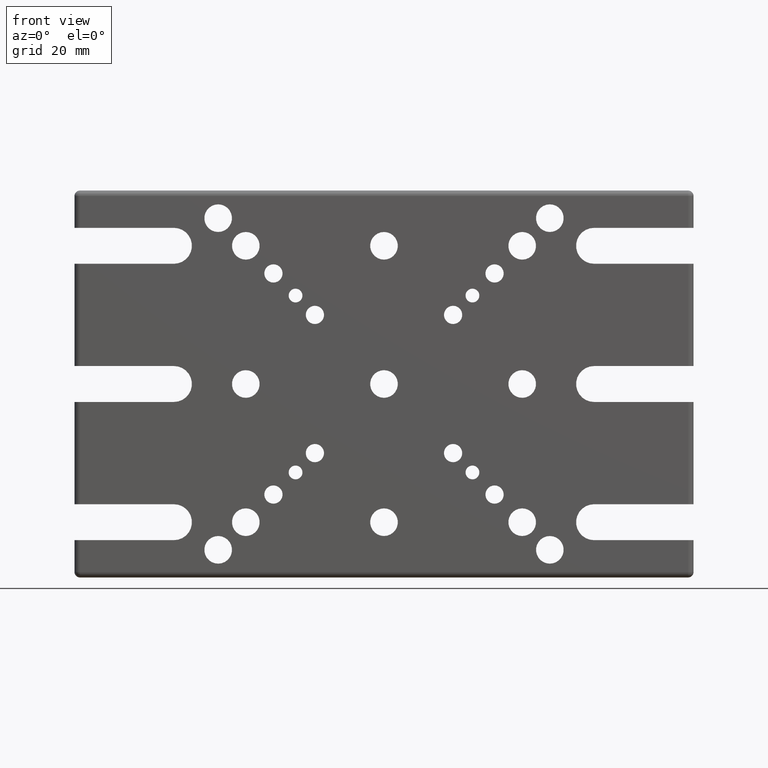
[diagram: clean part render]
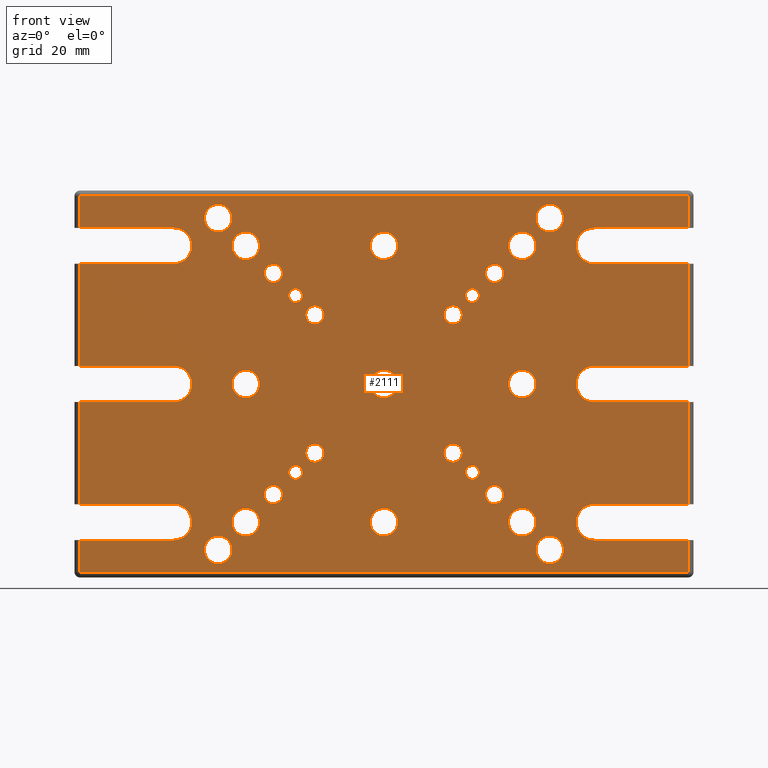
[diagram: same view with one face highlighted and labeled with its STEP entity id]
A machine part, front view. The second image highlights one B-rep face of the part: STEP entity #2111.
In plain terms, the highlighted planar face has unit normal (0, 1, 0).
Its self-contained STEP definition (entity closure, byte-faithful):
#3 = DIRECTION ( 'NONE',  ( -0.000000000000000000, 0.000000000000000000, -1.000000000000000000 ) ) ;
#7 = CARTESIAN_POINT ( 'NONE',  ( 38.00000000000000000, 0.000000000000000000, 3.250000000000005329 ) ) ;
#14 = EDGE_CURVE ( 'NONE', #2745, #2745, #1881, .T. ) ;
#18 = ORIENTED_EDGE ( 'NONE', *, *, #752, .T. ) ;
#34 = DIRECTION ( 'NONE',  ( 0.000000000000000000, 0.000000000000000000, 1.000000000000000000 ) ) ;
#42 = DIRECTION ( 'NONE',  ( -0.000000000000000000, 1.000000000000000000, -0.000000000000000000 ) ) ;
#46 = LINE ( 'NONE', #2272, #368 ) ;
#71 = CARTESIAN_POINT ( 'NONE',  ( -38.00000000000000000, 0.000000000000000000, -28.24999999999999645 ) ) ;
#93 = AXIS2_PLACEMENT_3D ( 'NONE', #787, #194, #1099 ) ;
#94 = VERTEX_POINT ( 'NONE', #983 ) ;
#96 = CIRCLE ( 'NONE', #685, 1.649999999999998579 ) ;
#98 = ORIENTED_EDGE ( 'NONE', *, *, #1024, .T. ) ;
#115 = EDGE_CURVE ( 'NONE', #2662, #2662, #2332, .T. ) ;
#116 = AXIS2_PLACEMENT_3D ( 'NONE', #608, #860, #3994 ) ;
#118 = CARTESIAN_POINT ( 'NONE',  ( 38.00000000000000000, 0.000000000000000000, -21.75000000000000000 ) ) ;
#161 = VERTEX_POINT ( 'NONE', #3013 ) ;
#162 = VERTEX_POINT ( 'NONE', #3385 ) ;
#170 = CIRCLE ( 'NONE', #3324, 2.499999999999998668 ) ;
#180 = CARTESIAN_POINT ( 'NONE',  ( 0.000000000000000000, 0.000000000000000000, 0.000000000000000000 ) ) ;
#183 = CIRCLE ( 'NONE', #769, 1.649999999999998579 ) ;
#189 = CARTESIAN_POINT ( 'NONE',  ( -55.00000000000000000, 0.000000000000000000, 33.99999999999999289 ) ) ;
#194 = DIRECTION ( 'NONE',  ( -0.000000000000000000, 1.000000000000000000, -0.000000000000000000 ) ) ;
#218 = EDGE_CURVE ( 'NONE', #161, #161, #1049, .T. ) ;
#219 = EDGE_CURVE ( 'NONE', #3874, #2445, #1520, .T. ) ;
#238 = CARTESIAN_POINT ( 'NONE',  ( 0.000000000000000000, 0.000000000000000000, 21.75000000000001066 ) ) ;
#241 = CARTESIAN_POINT ( 'NONE',  ( -25.00000000000001776, 0.000000000000000000, -22.50000000000001421 ) ) ;
#264 = VECTOR ( 'NONE', #2732, 1000.000000000000000 ) ;
#265 = VERTEX_POINT ( 'NONE', #2767 ) ;
#272 = VECTOR ( 'NONE', #664, 1000.000000000000000 ) ;
#299 = ORIENTED_EDGE ( 'NONE', *, *, #1116, .F. ) ;
#305 = CARTESIAN_POINT ( 'NONE',  ( -1.734723475976807094E-14, 0.000000000000000000, 27.49999999999998934 ) ) ;
#311 = ORIENTED_EDGE ( 'NONE', *, *, #1130, .F. ) ;
#313 = AXIS2_PLACEMENT_3D ( 'NONE', #1277, #320, #2547 ) ;
#320 = DIRECTION ( 'NONE',  ( 0.000000000000000000, 1.000000000000000000, 0.000000000000000000 ) ) ;
#324 = ORIENTED_EDGE ( 'NONE', *, *, #2291, .F. ) ;
#325 = CARTESIAN_POINT ( 'NONE',  ( 29.99999999999999645, 0.000000000000000000, 29.99999999999999645 ) ) ;
#337 = FACE_BOUND ( 'NONE', #2126, .T. ) ;
#339 = VERTEX_POINT ( 'NONE', #1936 ) ;
#356 = CARTESIAN_POINT ( 'NONE',  ( 24.99999999999998579, 0.000000000000000000, 2.499999999999988454 ) ) ;
#368 = VECTOR ( 'NONE', #1312, 1000.000000000000000 ) ;
#371 = CARTESIAN_POINT ( 'NONE',  ( 24.99999999999998579, 0.000000000000000000, 24.99999999999998934 ) ) ;
#375 = CARTESIAN_POINT ( 'NONE',  ( -12.49999999999999467, 0.000000000000000000, 14.15000000000000036 ) ) ;
#377 = CIRCLE ( 'NONE', #2702, 2.499999999999998668 ) ;
#394 = CARTESIAN_POINT ( 'NONE',  ( -16.00000000000000000, 0.000000000000000000, -16.00000000000000000 ) ) ;
#399 = DIRECTION ( 'NONE',  ( 0.000000000000000000, 0.000000000000000000, 1.000000000000000000 ) ) ;
#400 = EDGE_CURVE ( 'NONE', #1424, #1424, #170, .T. ) ;
#402 = CARTESIAN_POINT ( 'NONE',  ( 0.000000000000000000, 0.000000000000000000, 28.25000000000000711 ) ) ;
#415 = DIRECTION ( 'NONE',  ( -0.000000000000000000, 1.000000000000000000, -0.000000000000000000 ) ) ;
#416 = EDGE_CURVE ( 'NONE', #1445, #1445, #96, .T. ) ;
#465 = EDGE_CURVE ( 'NONE', #1465, #1465, #1087, .T. ) ;
#484 = CARTESIAN_POINT ( 'NONE',  ( 19.99999999999999289, 0.000000000000000000, -18.35000000000000142 ) ) ;
#544 = CARTESIAN_POINT ( 'NONE',  ( -15.99999999999999289, 0.000000000000000000, 16.00000000000000000 ) ) ;
#553 = EDGE_LOOP ( 'NONE', ( #1055 ) ) ;
#560 = CIRCLE ( 'NONE', #1291, 1.250000000000001110 ) ;
#578 = CIRCLE ( 'NONE', #1306, 2.499999999999998668 ) ;
#589 = CARTESIAN_POINT ( 'NONE',  ( -1.734723475976807094E-14, 0.000000000000000000, -22.50000000000001421 ) ) ;
#591 = VECTOR ( 'NONE', #3250, 1000.000000000000000 ) ;
#594 = EDGE_LOOP ( 'NONE', ( #3160 ) ) ;
#608 = CARTESIAN_POINT ( 'NONE',  ( 37.99999999999999289, 0.000000000000000000, 25.00000000000000711 ) ) ;
#619 = CARTESIAN_POINT ( 'NONE',  ( 38.00000000000000000, 0.000000000000000000, -24.99999999999999645 ) ) ;
#624 = FACE_BOUND ( 'NONE', #3982, .T. ) ;
#637 = DIRECTION ( 'NONE',  ( -0.000000000000000000, 1.000000000000000000, -0.000000000000000000 ) ) ;
#642 = LINE ( 'NONE', #1292, #1355 ) ;
#644 = FACE_BOUND ( 'NONE', #2419, .T. ) ;
#658 = AXIS2_PLACEMENT_3D ( 'NONE', #1069, #3581, #3011 ) ;
#662 = DIRECTION ( 'NONE',  ( 0.000000000000000000, 0.000000000000000000, 1.000000000000000000 ) ) ;
#663 = CARTESIAN_POINT ( 'NONE',  ( 0.000000000000000000, 0.000000000000000000, 21.75000000000001066 ) ) ;
#664 = DIRECTION ( 'NONE',  ( 1.000000000000000000, -0.000000000000000000, -0.000000000000000000 ) ) ;
#683 = FACE_BOUND ( 'NONE', #737, .T. ) ;
#685 = AXIS2_PLACEMENT_3D ( 'NONE', #2269, #42, #1309 ) ;
#688 = EDGE_CURVE ( 'NONE', #2528, #2528, #560, .T. ) ;
#695 = ORIENTED_EDGE ( 'NONE', *, *, #2134, .T. ) ;
#726 = EDGE_CURVE ( 'NONE', #2888, #3941, #642, .T. ) ;
#737 = EDGE_LOOP ( 'NONE', ( #2263 ) ) ;
#746 = CARTESIAN_POINT ( 'NONE',  ( -55.00000000000000000, 0.000000000000000000, -34.00000000000000711 ) ) ;
#752 = EDGE_CURVE ( 'NONE', #1549, #1549, #3591, .T. ) ;
#755 = AXIS2_PLACEMENT_3D ( 'NONE', #371, #1891, #1912 ) ;
#765 = DIRECTION ( 'NONE',  ( 0.000000000000000000, 0.000000000000000000, 1.000000000000000000 ) ) ;
#766 = CARTESIAN_POINT ( 'NONE',  ( -37.99999999999999289, 0.000000000000000000, 25.00000000000000711 ) ) ;
#769 = AXIS2_PLACEMENT_3D ( 'NONE', #1688, #415, #1707 ) ;
#774 = CIRCLE ( 'NONE', #3613, 1.249999999999997558 ) ;
#776 = DIRECTION ( 'NONE',  ( -1.000000000000000000, 0.000000000000000000, 0.000000000000000000 ) ) ;
#778 = EDGE_CURVE ( 'NONE', #3940, #1839, #3494, .T. ) ;
#782 = VECTOR ( 'NONE', #3242, 1000.000000000000000 ) ;
#783 = LINE ( 'NONE', #1764, #264 ) ;
#787 = CARTESIAN_POINT ( 'NONE',  ( 16.00000000000000711, 0.000000000000000000, 16.00000000000000000 ) ) ;
#815 = CARTESIAN_POINT ( 'NONE',  ( 55.00000000000000000, 0.000000000000000000, 21.75000000000001066 ) ) ;
#820 = CARTESIAN_POINT ( 'NONE',  ( -38.00000000000000000, 0.000000000000000000, -21.75000000000000000 ) ) ;
#836 = CARTESIAN_POINT ( 'NONE',  ( -37.99999999999999289, 0.000000000000000000, 28.25000000000000711 ) ) ;
#840 = AXIS2_PLACEMENT_3D ( 'NONE', #3647, #3565, #1072 ) ;
#860 = DIRECTION ( 'NONE',  ( -0.000000000000000000, -1.000000000000000000, -0.000000000000000000 ) ) ;
#864 = DIRECTION ( 'NONE',  ( -0.000000000000000000, 1.000000000000000000, -0.000000000000000000 ) ) ;
#881 = CARTESIAN_POINT ( 'NONE',  ( 24.99999999999998579, 0.000000000000000000, 27.49999999999998934 ) ) ;
#885 = ORIENTED_EDGE ( 'NONE', *, *, #1684, .T. ) ;
#894 = EDGE_CURVE ( 'NONE', #2513, #2513, #3476, .T. ) ;
#895 = ORIENTED_EDGE ( 'NONE', *, *, #3857, .T. ) ;
#898 = LINE ( 'NONE', #1856, #2955 ) ;
#921 = CARTESIAN_POINT ( 'NONE',  ( 38.00000000000000000, 0.000000000000000000, -28.24999999999999645 ) ) ;
#922 = VECTOR ( 'NONE', #2199, 1000.000000000000000 ) ;
#926 = CARTESIAN_POINT ( 'NONE',  ( 0.000000000000000000, 0.000000000000000000, 33.99999999999999289 ) ) ;
#929 = EDGE_CURVE ( 'NONE', #3399, #3545, #1808, .T. ) ;
#934 = DIRECTION ( 'NONE',  ( 1.982541115402065110E-16, -0.000000000000000000, 1.000000000000000000 ) ) ;
#938 = DIRECTION ( 'NONE',  ( 0.000000000000000000, 1.000000000000000000, 0.000000000000000000 ) ) ;
#948 = CARTESIAN_POINT ( 'NONE',  ( -25.00000000000001776, 0.000000000000000000, -25.00000000000001066 ) ) ;
#968 = DIRECTION ( 'NONE',  ( -0.000000000000000000, 1.000000000000000000, -0.000000000000000000 ) ) ;
#970 = ORIENTED_EDGE ( 'NONE', *, *, #2304, .T. ) ;
#974 = DIRECTION ( 'NONE',  ( 0.000000000000000000, 0.000000000000000000, 1.000000000000000000 ) ) ;
#983 = CARTESIAN_POINT ( 'NONE',  ( -30.00000000000001421, 0.000000000000000000, -27.50000000000000355 ) ) ;
#987 = CARTESIAN_POINT ( 'NONE',  ( 37.99999999999999289, 0.000000000000000000, 21.75000000000001066 ) ) ;
#988 = AXIS2_PLACEMENT_3D ( 'NONE', #4040, #864, #1777 ) ;
#991 = ORIENTED_EDGE ( 'NONE', *, *, #416, .T. ) ;
#1004 = EDGE_LOOP ( 'NONE', ( #2018 ) ) ;
#1006 = DIRECTION ( 'NONE',  ( 0.000000000000000000, 0.000000000000000000, 1.000000000000000000 ) ) ;
#1007 = DIRECTION ( 'NONE',  ( -0.000000000000000000, 1.000000000000000000, -0.000000000000000000 ) ) ;
#1010 = EDGE_LOOP ( 'NONE', ( #98 ) ) ;
#1024 = EDGE_CURVE ( 'NONE', #2810, #2810, #774, .T. ) ;
#1032 = VERTEX_POINT ( 'NONE', #2151 ) ;
#1033 = ORIENTED_EDGE ( 'NONE', *, *, #3934, .T. ) ;
#1038 = DIRECTION ( 'NONE',  ( -0.000000000000000000, 1.000000000000000000, -0.000000000000000000 ) ) ;
#1043 = DIRECTION ( 'NONE',  ( 0.000000000000000000, 0.000000000000000000, 1.000000000000000000 ) ) ;
#1046 = CARTESIAN_POINT ( 'NONE',  ( -12.50000000000000000, 0.000000000000000000, -10.84999999999999964 ) ) ;
#1049 = CIRCLE ( 'NONE', #3351, 2.500000000000002220 ) ;
#1055 = ORIENTED_EDGE ( 'NONE', *, *, #2158, .T. ) ;
#1057 = CIRCLE ( 'NONE', #1390, 2.499999999999998668 ) ;
#1069 = CARTESIAN_POINT ( 'NONE',  ( -12.49999999999999467, 0.000000000000000000, 12.50000000000000178 ) ) ;
#1072 = DIRECTION ( 'NONE',  ( 0.000000000000000000, 0.000000000000000000, 1.000000000000000000 ) ) ;
#1076 = ORIENTED_EDGE ( 'NONE', *, *, #726, .T. ) ;
#1087 = CIRCLE ( 'NONE', #3390, 1.649999999999998579 ) ;
#1096 = DIRECTION ( 'NONE',  ( -0.000000000000000000, 0.000000000000000000, -1.000000000000000000 ) ) ;
#1099 = DIRECTION ( 'NONE',  ( 0.000000000000000000, 0.000000000000000000, 1.000000000000000000 ) ) ;
#1100 = VECTOR ( 'NONE', #3205, 1000.000000000000000 ) ;
#1109 = LINE ( 'NONE', #2075, #3146 ) ;
#1115 = EDGE_LOOP ( 'NONE', ( #3365 ) ) ;
#1116 = EDGE_CURVE ( 'NONE', #2999, #1985, #2434, .T. ) ;
#1121 = VERTEX_POINT ( 'NONE', #7 ) ;
#1124 = CARTESIAN_POINT ( 'NONE',  ( 29.99999999999998579, 0.000000000000000000, -30.00000000000000000 ) ) ;
#1130 = EDGE_CURVE ( 'NONE', #1985, #2445, #3127, .T. ) ;
#1131 = DIRECTION ( 'NONE',  ( 0.000000000000000000, 0.000000000000000000, 1.000000000000000000 ) ) ;
#1135 = EDGE_LOOP ( 'NONE', ( #2939 ) ) ;
#1149 = LINE ( 'NONE', #238, #1325 ) ;
#1150 = FACE_BOUND ( 'NONE', #1115, .T. ) ;
#1170 = ORIENTED_EDGE ( 'NONE', *, *, #218, .T. ) ;
#1201 = VERTEX_POINT ( 'NONE', #2174 ) ;
#1202 = ORIENTED_EDGE ( 'NONE', *, *, #2576, .T. ) ;
#1218 = CARTESIAN_POINT ( 'NONE',  ( -16.00000000000000000, 0.000000000000000000, -14.75000000000000178 ) ) ;
#1226 = EDGE_LOOP ( 'NONE', ( #3017, #3914, #3515, #2083, #2982, #1389, #3100, #3277, #2836, #3022, #2125, #2347, #2206, #2772, #1247, #2905, #3298, #3000, #2351, #311, #299, #2521, #1076, #2378, #324, #695, #1538, #2914 ) ) ;
#1231 = ORIENTED_EDGE ( 'NONE', *, *, #400, .T. ) ;
#1235 = DIRECTION ( 'NONE',  ( 0.000000000000000000, 0.000000000000000000, 1.000000000000000000 ) ) ;
#1236 = FACE_BOUND ( 'NONE', #1343, .T. ) ;
#1238 = VERTEX_POINT ( 'NONE', #241 ) ;
#1247 = ORIENTED_EDGE ( 'NONE', *, *, #3293, .T. ) ;
#1260 = EDGE_CURVE ( 'NONE', #2978, #3502, #2397, .T. ) ;
#1261 = CARTESIAN_POINT ( 'NONE',  ( 12.50000000000000000, 0.000000000000000000, -10.84999999999999964 ) ) ;
#1266 = CARTESIAN_POINT ( 'NONE',  ( -37.99999999999999289, 0.000000000000000000, 21.75000000000001066 ) ) ;
#1277 = CARTESIAN_POINT ( 'NONE',  ( 0.000000000000000000, 0.000000000000000000, 0.000000000000000000 ) ) ;
#1291 = AXIS2_PLACEMENT_3D ( 'NONE', #544, #1500, #1831 ) ;
#1292 = CARTESIAN_POINT ( 'NONE',  ( 54.99999999999999289, 0.000000000000000000, -1.090397613471135663E-14 ) ) ;
#1293 = CARTESIAN_POINT ( 'NONE',  ( -38.00000000000000000, 0.000000000000000000, -24.99999999999999645 ) ) ;
#1300 = DIRECTION ( 'NONE',  ( -0.000000000000000000, 1.000000000000000000, -0.000000000000000000 ) ) ;
#1306 = AXIS2_PLACEMENT_3D ( 'NONE', #3297, #2979, #2327 ) ;
#1309 = DIRECTION ( 'NONE',  ( 0.000000000000000000, 0.000000000000000000, 1.000000000000000000 ) ) ;
#1311 = LINE ( 'NONE', #3742, #272 ) ;
#1312 = DIRECTION ( 'NONE',  ( 1.982541115402065110E-16, -0.000000000000000000, 1.000000000000000000 ) ) ;
#1318 = CARTESIAN_POINT ( 'NONE',  ( 0.000000000000000000, 0.000000000000000000, -3.249999999999995115 ) ) ;
#1319 = CIRCLE ( 'NONE', #4018, 3.249999999999999556 ) ;
#1325 = VECTOR ( 'NONE', #3392, 1000.000000000000000 ) ;
#1326 = EDGE_LOOP ( 'NONE', ( #885 ) ) ;
#1343 = EDGE_LOOP ( 'NONE', ( #2804 ) ) ;
#1353 = DIRECTION ( 'NONE',  ( -0.000000000000000000, -1.000000000000000000, -0.000000000000000000 ) ) ;
#1355 = VECTOR ( 'NONE', #1623, 1000.000000000000000 ) ;
#1357 = EDGE_CURVE ( 'NONE', #2182, #2182, #377, .T. ) ;
#1358 = CARTESIAN_POINT ( 'NONE',  ( -20.00000000000000355, 0.000000000000000000, 21.64999999999999858 ) ) ;
#1367 = AXIS2_PLACEMENT_3D ( 'NONE', #2870, #1300, #2261 ) ;
#1372 = AXIS2_PLACEMENT_3D ( 'NONE', #2635, #1353, #1995 ) ;
#1375 = CARTESIAN_POINT ( 'NONE',  ( 55.00000000000000000, 0.000000000000000000, 33.99999999999999289 ) ) ;
#1379 = VERTEX_POINT ( 'NONE', #375 ) ;
#1389 = ORIENTED_EDGE ( 'NONE', *, *, #2533, .F. ) ;
#1390 = AXIS2_PLACEMENT_3D ( 'NONE', #2884, #3519, #1006 ) ;
#1424 = VERTEX_POINT ( 'NONE', #2682 ) ;
#1433 = EDGE_CURVE ( 'NONE', #3507, #3583, #2438, .T. ) ;
#1437 = CIRCLE ( 'NONE', #116, 3.249999999999999556 ) ;
#1445 = VERTEX_POINT ( 'NONE', #484 ) ;
#1453 = ORIENTED_EDGE ( 'NONE', *, *, #2847, .T. ) ;
#1459 = DIRECTION ( 'NONE',  ( 1.000000000000000000, -0.000000000000000000, 0.000000000000000000 ) ) ;
#1465 = VERTEX_POINT ( 'NONE', #3356 ) ;
#1497 = CARTESIAN_POINT ( 'NONE',  ( 16.00000000000000000, 0.000000000000000000, -16.00000000000000000 ) ) ;
#1500 = DIRECTION ( 'NONE',  ( -0.000000000000000000, 1.000000000000000000, -0.000000000000000000 ) ) ;
#1504 = VERTEX_POINT ( 'NONE', #1218 ) ;
#1519 = AXIS2_PLACEMENT_3D ( 'NONE', #1788, #1747, #3005 ) ;
#1520 = LINE ( 'NONE', #4032, #1583 ) ;
#1523 = EDGE_CURVE ( 'NONE', #2144, #2978, #2423, .T. ) ;
#1538 = ORIENTED_EDGE ( 'NONE', *, *, #1714, .T. ) ;
#1549 = VERTEX_POINT ( 'NONE', #881 ) ;
#1568 = VECTOR ( 'NONE', #3737, 1000.000000000000000 ) ;
#1569 = CARTESIAN_POINT ( 'NONE',  ( 24.99999999999998579, 0.000000000000000000, -22.50000000000001421 ) ) ;
#1582 = DIRECTION ( 'NONE',  ( -0.000000000000000000, -1.000000000000000000, -0.000000000000000000 ) ) ;
#1583 = VECTOR ( 'NONE', #934, 1000.000000000000000 ) ;
#1589 = AXIS2_PLACEMENT_3D ( 'NONE', #3171, #3209, #3152 ) ;
#1596 = DIRECTION ( 'NONE',  ( -0.000000000000000000, 1.000000000000000000, -0.000000000000000000 ) ) ;
#1607 = FACE_BOUND ( 'NONE', #3177, .T. ) ;
#1608 = VERTEX_POINT ( 'NONE', #3208 ) ;
#1623 = DIRECTION ( 'NONE',  ( 1.982541115402065110E-16, -0.000000000000000000, 1.000000000000000000 ) ) ;
#1632 = CIRCLE ( 'NONE', #2758, 1.249999999999999334 ) ;
#1645 = EDGE_CURVE ( 'NONE', #2665, #1201, #2557, .T. ) ;
#1658 = ORIENTED_EDGE ( 'NONE', *, *, #1357, .T. ) ;
#1659 = CIRCLE ( 'NONE', #2238, 1.649999999999998579 ) ;
#1670 = VERTEX_POINT ( 'NONE', #1046 ) ;
#1671 = LINE ( 'NONE', #3892, #591 ) ;
#1684 = EDGE_CURVE ( 'NONE', #1238, #1238, #2823, .T. ) ;
#1688 = CARTESIAN_POINT ( 'NONE',  ( -12.50000000000000000, 0.000000000000000000, -12.49999999999999822 ) ) ;
#1707 = DIRECTION ( 'NONE',  ( 0.000000000000000000, 0.000000000000000000, 1.000000000000000000 ) ) ;
#1713 = VECTOR ( 'NONE', #4041, 1000.000000000000000 ) ;
#1714 = EDGE_CURVE ( 'NONE', #3607, #1839, #2484, .T. ) ;
#1737 = EDGE_LOOP ( 'NONE', ( #991 ) ) ;
#1747 = DIRECTION ( 'NONE',  ( -0.000000000000000000, 1.000000000000000000, -0.000000000000000000 ) ) ;
#1754 = CARTESIAN_POINT ( 'NONE',  ( -1.734723475976807094E-14, 0.000000000000000000, 24.99999999999998934 ) ) ;
#1764 = CARTESIAN_POINT ( 'NONE',  ( 0.000000000000000000, 0.000000000000000000, -21.75000000000000000 ) ) ;
#1769 = AXIS2_PLACEMENT_3D ( 'NONE', #1754, #3873, #3852 ) ;
#1777 = DIRECTION ( 'NONE',  ( 0.000000000000000000, 0.000000000000000000, 1.000000000000000000 ) ) ;
#1779 = ORIENTED_EDGE ( 'NONE', *, *, #115, .T. ) ;
#1788 = CARTESIAN_POINT ( 'NONE',  ( -20.00000000000000711, 0.000000000000000000, -20.00000000000000000 ) ) ;
#1801 = EDGE_CURVE ( 'NONE', #1032, #3941, #2537, .T. ) ;
#1808 = LINE ( 'NONE', #4033, #3548 ) ;
#1813 = FACE_BOUND ( 'NONE', #1737, .T. ) ;
#1827 = EDGE_CURVE ( 'NONE', #1835, #1835, #2424, .T. ) ;
#1831 = DIRECTION ( 'NONE',  ( 0.000000000000000000, 0.000000000000000000, 1.000000000000000000 ) ) ;
#1835 = VERTEX_POINT ( 'NONE', #1261 ) ;
#1839 = VERTEX_POINT ( 'NONE', #815 ) ;
#1856 = CARTESIAN_POINT ( 'NONE',  ( 0.000000000000000000, 0.000000000000000000, -21.75000000000000000 ) ) ;
#1866 = EDGE_CURVE ( 'NONE', #2494, #2494, #3405, .T. ) ;
#1867 = EDGE_CURVE ( 'NONE', #3583, #2209, #1109, .T. ) ;
#1881 = CIRCLE ( 'NONE', #93, 1.249999999999997558 ) ;
#1891 = DIRECTION ( 'NONE',  ( -0.000000000000000000, 1.000000000000000000, -0.000000000000000000 ) ) ;
#1893 = FACE_BOUND ( 'NONE', #3019, .T. ) ;
#1912 = DIRECTION ( 'NONE',  ( 0.000000000000000000, 0.000000000000000000, 1.000000000000000000 ) ) ;
#1914 = FACE_BOUND ( 'NONE', #3381, .T. ) ;
#1916 = VERTEX_POINT ( 'NONE', #2274 ) ;
#1923 = CARTESIAN_POINT ( 'NONE',  ( -55.00000000000000000, 0.000000000000000000, 0.000000000000000000 ) ) ;
#1936 = CARTESIAN_POINT ( 'NONE',  ( 29.99999999999999645, 0.000000000000000000, 32.49999999999999289 ) ) ;
#1961 = EDGE_CURVE ( 'NONE', #265, #265, #2426, .T. ) ;
#1969 = CARTESIAN_POINT ( 'NONE',  ( -1.734723475976807094E-14, 0.000000000000000000, -25.00000000000001066 ) ) ;
#1979 = CARTESIAN_POINT ( 'NONE',  ( -25.00000000000000711, 0.000000000000000000, 24.99999999999998934 ) ) ;
#1985 = VERTEX_POINT ( 'NONE', #921 ) ;
#1988 = CIRCLE ( 'NONE', #2651, 2.499999999999998668 ) ;
#1995 = DIRECTION ( 'NONE',  ( 0.000000000000000000, 0.000000000000000000, 1.000000000000000000 ) ) ;
#2001 = LINE ( 'NONE', #402, #2553 ) ;
#2004 = ORIENTED_EDGE ( 'NONE', *, *, #2751, .T. ) ;
#2018 = ORIENTED_EDGE ( 'NONE', *, *, #3168, .T. ) ;
#2038 = VERTEX_POINT ( 'NONE', #3974 ) ;
#2055 = CARTESIAN_POINT ( 'NONE',  ( -55.00000000000000000, 0.000000000000000000, -28.24999999999999645 ) ) ;
#2075 = CARTESIAN_POINT ( 'NONE',  ( -55.00000000000000000, 0.000000000000000000, 0.000000000000000000 ) ) ;
#2077 = CARTESIAN_POINT ( 'NONE',  ( 16.00000000000000711, 0.000000000000000000, 17.24999999999999645 ) ) ;
#2083 = ORIENTED_EDGE ( 'NONE', *, *, #1433, .T. ) ;
#2086 = EDGE_CURVE ( 'NONE', #2999, #2888, #898, .T. ) ;
#2096 = CARTESIAN_POINT ( 'NONE',  ( 19.99999999999999645, 0.000000000000000000, 20.00000000000000000 ) ) ;
#2106 = AXIS2_PLACEMENT_3D ( 'NONE', #325, #1596, #3479 ) ;
#2109 = EDGE_CURVE ( 'NONE', #3399, #3940, #1437, .T. ) ;
#2111 = ADVANCED_FACE ( 'NONE', ( #1236, #3375, #2120, #1150, #1813, #2492, #3743, #2412, #3663, #1914, #3227, #2571, #1893, #3514, #337, #3167, #1607, #3149, #644, #624, #2511, #2592, #683, #2217, #3451, #2862 ), #3823, .F. ) ;
#2115 = DIRECTION ( 'NONE',  ( -0.000000000000000000, 1.000000000000000000, -0.000000000000000000 ) ) ;
#2120 = FACE_BOUND ( 'NONE', #553, .T. ) ;
#2125 = ORIENTED_EDGE ( 'NONE', *, *, #2868, .T. ) ;
#2126 = EDGE_LOOP ( 'NONE', ( #2311 ) ) ;
#2134 = EDGE_CURVE ( 'NONE', #1121, #3607, #2235, .T. ) ;
#2144 = VERTEX_POINT ( 'NONE', #71 ) ;
#2150 = DIRECTION ( 'NONE',  ( 0.000000000000000000, 0.000000000000000000, 1.000000000000000000 ) ) ;
#2151 = CARTESIAN_POINT ( 'NONE',  ( 38.00000000000000000, 0.000000000000000000, -3.249999999999995115 ) ) ;
#2152 = VECTOR ( 'NONE', #3, 1000.000000000000000 ) ;
#2156 = DIRECTION ( 'NONE',  ( 1.000000000000000000, -0.000000000000000000, 0.000000000000000000 ) ) ;
#2158 = EDGE_CURVE ( 'NONE', #1504, #1504, #1632, .T. ) ;
#2174 = CARTESIAN_POINT ( 'NONE',  ( -55.00000000000000000, 0.000000000000000000, -21.75000000000000000 ) ) ;
#2182 = VERTEX_POINT ( 'NONE', #589 ) ;
#2194 = EDGE_CURVE ( 'NONE', #3545, #3507, #46, .T. ) ;
#2199 = DIRECTION ( 'NONE',  ( -1.000000000000000000, 0.000000000000000000, 0.000000000000000000 ) ) ;
#2206 = ORIENTED_EDGE ( 'NONE', *, *, #1645, .T. ) ;
#2209 = VERTEX_POINT ( 'NONE', #2829 ) ;
#2217 = FACE_BOUND ( 'NONE', #1326, .T. ) ;
#2225 = CARTESIAN_POINT ( 'NONE',  ( 54.99999999999999289, 0.000000000000000000, -1.090397613471135663E-14 ) ) ;
#2234 = CARTESIAN_POINT ( 'NONE',  ( 37.99999999999999289, 0.000000000000000000, 28.25000000000000711 ) ) ;
#2235 = LINE ( 'NONE', #2879, #1100 ) ;
#2237 = VERTEX_POINT ( 'NONE', #356 ) ;
#2238 = AXIS2_PLACEMENT_3D ( 'NONE', #2096, #3374, #1131 ) ;
#2257 = CARTESIAN_POINT ( 'NONE',  ( 54.99999999999999289, 0.000000000000000000, -21.75000000000000000 ) ) ;
#2261 = DIRECTION ( 'NONE',  ( 0.000000000000000000, 0.000000000000000000, 1.000000000000000000 ) ) ;
#2263 = ORIENTED_EDGE ( 'NONE', *, *, #894, .T. ) ;
#2269 = CARTESIAN_POINT ( 'NONE',  ( 19.99999999999999289, 0.000000000000000000, -20.00000000000000000 ) ) ;
#2272 = CARTESIAN_POINT ( 'NONE',  ( 54.99999999999999289, 0.000000000000000000, -1.090397613471135663E-14 ) ) ;
#2274 = CARTESIAN_POINT ( 'NONE',  ( 19.99999999999999645, 0.000000000000000000, 21.64999999999999858 ) ) ;
#2280 = CARTESIAN_POINT ( 'NONE',  ( -55.00000000000000000, 0.000000000000000000, 21.75000000000001066 ) ) ;
#2290 = DIRECTION ( 'NONE',  ( 0.000000000000000000, 0.000000000000000000, 1.000000000000000000 ) ) ;
#2291 = EDGE_CURVE ( 'NONE', #1121, #1032, #4007, .T. ) ;
#2295 = CARTESIAN_POINT ( 'NONE',  ( 55.00000000000000000, 0.000000000000000000, 28.25000000000000711 ) ) ;
#2304 = EDGE_CURVE ( 'NONE', #1670, #1670, #183, .T. ) ;
#2311 = ORIENTED_EDGE ( 'NONE', *, *, #1866, .T. ) ;
#2317 = DIRECTION ( 'NONE',  ( -0.000000000000000000, 1.000000000000000000, -0.000000000000000000 ) ) ;
#2327 = DIRECTION ( 'NONE',  ( 0.000000000000000000, 0.000000000000000000, 1.000000000000000000 ) ) ;
#2329 = ORIENTED_EDGE ( 'NONE', *, *, #2646, .T. ) ;
#2332 = CIRCLE ( 'NONE', #1519, 1.649999999999998579 ) ;
#2347 = ORIENTED_EDGE ( 'NONE', *, *, #2856, .T. ) ;
#2351 = ORIENTED_EDGE ( 'NONE', *, *, #219, .T. ) ;
#2378 = ORIENTED_EDGE ( 'NONE', *, *, #1801, .F. ) ;
#2397 = LINE ( 'NONE', #3040, #782 ) ;
#2400 = EDGE_LOOP ( 'NONE', ( #1033 ) ) ;
#2408 = EDGE_CURVE ( 'NONE', #3930, #162, #3836, .T. ) ;
#2412 = FACE_BOUND ( 'NONE', #594, .T. ) ;
#2413 = VECTOR ( 'NONE', #2569, 1000.000000000000000 ) ;
#2419 = EDGE_LOOP ( 'NONE', ( #1231 ) ) ;
#2423 = LINE ( 'NONE', #3637, #2953 ) ;
#2424 = CIRCLE ( 'NONE', #1367, 1.649999999999998579 ) ;
#2426 = CIRCLE ( 'NONE', #2824, 2.499999999999999112 ) ;
#2434 = CIRCLE ( 'NONE', #3680, 3.249999999999999556 ) ;
#2438 = LINE ( 'NONE', #926, #1713 ) ;
#2444 = CIRCLE ( 'NONE', #2106, 2.499999999999998668 ) ;
#2445 = VERTEX_POINT ( 'NONE', #3258 ) ;
#2451 = CIRCLE ( 'NONE', #3956, 3.249999999999999556 ) ;
#2483 = VERTEX_POINT ( 'NONE', #820 ) ;
#2484 = LINE ( 'NONE', #2225, #1568 ) ;
#2492 = FACE_BOUND ( 'NONE', #1004, .T. ) ;
#2494 = VERTEX_POINT ( 'NONE', #305 ) ;
#2511 = FACE_BOUND ( 'NONE', #2624, .T. ) ;
#2513 = VERTEX_POINT ( 'NONE', #1569 ) ;
#2521 = ORIENTED_EDGE ( 'NONE', *, *, #2086, .T. ) ;
#2527 = DIRECTION ( 'NONE',  ( -0.000000000000000000, 1.000000000000000000, -0.000000000000000000 ) ) ;
#2528 = VERTEX_POINT ( 'NONE', #3115 ) ;
#2533 = EDGE_CURVE ( 'NONE', #3136, #2209, #2001, .T. ) ;
#2537 = LINE ( 'NONE', #3481, #3335 ) ;
#2541 = CARTESIAN_POINT ( 'NONE',  ( -30.00000000000001066, 0.000000000000000000, 29.99999999999999645 ) ) ;
#2547 = DIRECTION ( 'NONE',  ( 0.000000000000000000, -0.000000000000000000, 1.000000000000000000 ) ) ;
#2553 = VECTOR ( 'NONE', #776, 1000.000000000000000 ) ;
#2557 = LINE ( 'NONE', #1923, #2152 ) ;
#2569 = DIRECTION ( 'NONE',  ( 1.000000000000000000, -0.000000000000000000, 0.000000000000000000 ) ) ;
#2571 = FACE_BOUND ( 'NONE', #1135, .T. ) ;
#2576 = EDGE_CURVE ( 'NONE', #2237, #2237, #2627, .T. ) ;
#2592 = FACE_BOUND ( 'NONE', #2779, .T. ) ;
#2615 = VERTEX_POINT ( 'NONE', #1358 ) ;
#2624 = EDGE_LOOP ( 'NONE', ( #18 ) ) ;
#2627 = CIRCLE ( 'NONE', #840, 2.499999999999998668 ) ;
#2635 = CARTESIAN_POINT ( 'NONE',  ( 38.00000000000000000, 0.000000000000000000, 5.204170427930422072E-15 ) ) ;
#2646 = EDGE_CURVE ( 'NONE', #94, #94, #578, .T. ) ;
#2651 = AXIS2_PLACEMENT_3D ( 'NONE', #1979, #1007, #399 ) ;
#2662 = VERTEX_POINT ( 'NONE', #3313 ) ;
#2665 = VERTEX_POINT ( 'NONE', #2769 ) ;
#2682 = CARTESIAN_POINT ( 'NONE',  ( -30.00000000000001066, 0.000000000000000000, 32.49999999999999289 ) ) ;
#2702 = AXIS2_PLACEMENT_3D ( 'NONE', #1969, #1038, #2290 ) ;
#2713 = EDGE_LOOP ( 'NONE', ( #1658 ) ) ;
#2732 = DIRECTION ( 'NONE',  ( -1.000000000000000000, 0.000000000000000000, 0.000000000000000000 ) ) ;
#2745 = VERTEX_POINT ( 'NONE', #2077 ) ;
#2751 = EDGE_CURVE ( 'NONE', #2615, #2615, #3885, .T. ) ;
#2753 = CARTESIAN_POINT ( 'NONE',  ( 54.99999999999999289, 0.000000000000000000, 3.250000000000002665 ) ) ;
#2758 = AXIS2_PLACEMENT_3D ( 'NONE', #394, #2527, #3535 ) ;
#2767 = CARTESIAN_POINT ( 'NONE',  ( 0.000000000000000000, 0.000000000000000000, 2.499999999999999112 ) ) ;
#2769 = CARTESIAN_POINT ( 'NONE',  ( -55.00000000000000000, 0.000000000000000000, -3.249999999999996003 ) ) ;
#2772 = ORIENTED_EDGE ( 'NONE', *, *, #3608, .F. ) ;
#2779 = EDGE_LOOP ( 'NONE', ( #1170 ) ) ;
#2803 = CARTESIAN_POINT ( 'NONE',  ( 0.000000000000000000, 0.000000000000000000, -28.24999999999999645 ) ) ;
#2804 = ORIENTED_EDGE ( 'NONE', *, *, #14, .T. ) ;
#2810 = VERTEX_POINT ( 'NONE', #4055 ) ;
#2823 = CIRCLE ( 'NONE', #3998, 2.499999999999998668 ) ;
#2824 = AXIS2_PLACEMENT_3D ( 'NONE', #180, #3331, #3033 ) ;
#2829 = CARTESIAN_POINT ( 'NONE',  ( -55.00000000000000000, 0.000000000000000000, 28.25000000000000711 ) ) ;
#2836 = ORIENTED_EDGE ( 'NONE', *, *, #2408, .T. ) ;
#2847 = EDGE_CURVE ( 'NONE', #1608, #1608, #1057, .T. ) ;
#2856 = EDGE_CURVE ( 'NONE', #3301, #2665, #3782, .T. ) ;
#2862 = FACE_OUTER_BOUND ( 'NONE', #1226, .T. ) ;
#2868 = EDGE_CURVE ( 'NONE', #2038, #3301, #3357, .T. ) ;
#2870 = CARTESIAN_POINT ( 'NONE',  ( 12.50000000000000000, 0.000000000000000000, -12.49999999999999822 ) ) ;
#2879 = CARTESIAN_POINT ( 'NONE',  ( 0.000000000000000000, 0.000000000000000000, 3.250000000000005329 ) ) ;
#2884 = CARTESIAN_POINT ( 'NONE',  ( -25.00000000000001421, 0.000000000000000000, -1.040834085586084257E-14 ) ) ;
#2888 = VERTEX_POINT ( 'NONE', #2257 ) ;
#2905 = ORIENTED_EDGE ( 'NONE', *, *, #1523, .T. ) ;
#2914 = ORIENTED_EDGE ( 'NONE', *, *, #778, .F. ) ;
#2915 = ORIENTED_EDGE ( 'NONE', *, *, #1961, .T. ) ;
#2939 = ORIENTED_EDGE ( 'NONE', *, *, #3003, .T. ) ;
#2949 = EDGE_CURVE ( 'NONE', #2038, #162, #1671, .T. ) ;
#2953 = VECTOR ( 'NONE', #3945, 1000.000000000000000 ) ;
#2955 = VECTOR ( 'NONE', #2156, 1000.000000000000000 ) ;
#2978 = VERTEX_POINT ( 'NONE', #2055 ) ;
#2979 = DIRECTION ( 'NONE',  ( -0.000000000000000000, 1.000000000000000000, -0.000000000000000000 ) ) ;
#2982 = ORIENTED_EDGE ( 'NONE', *, *, #1867, .T. ) ;
#2996 = EDGE_LOOP ( 'NONE', ( #2329 ) ) ;
#2999 = VERTEX_POINT ( 'NONE', #118 ) ;
#3000 = ORIENTED_EDGE ( 'NONE', *, *, #3371, .T. ) ;
#3003 = EDGE_CURVE ( 'NONE', #1379, #1379, #3756, .T. ) ;
#3005 = DIRECTION ( 'NONE',  ( 0.000000000000000000, 0.000000000000000000, 1.000000000000000000 ) ) ;
#3011 = DIRECTION ( 'NONE',  ( 0.000000000000000000, 0.000000000000000000, 1.000000000000000000 ) ) ;
#3013 = CARTESIAN_POINT ( 'NONE',  ( 29.99999999999998579, 0.000000000000000000, -27.49999999999999645 ) ) ;
#3017 = ORIENTED_EDGE ( 'NONE', *, *, #2109, .F. ) ;
#3019 = EDGE_LOOP ( 'NONE', ( #2915 ) ) ;
#3022 = ORIENTED_EDGE ( 'NONE', *, *, #2949, .F. ) ;
#3033 = DIRECTION ( 'NONE',  ( 0.000000000000000000, 0.000000000000000000, 1.000000000000000000 ) ) ;
#3040 = CARTESIAN_POINT ( 'NONE',  ( -55.00000000000000000, 0.000000000000000000, 0.000000000000000000 ) ) ;
#3051 = DIRECTION ( 'NONE',  ( 0.000000000000000000, 0.000000000000000000, 1.000000000000000000 ) ) ;
#3100 = ORIENTED_EDGE ( 'NONE', *, *, #3542, .T. ) ;
#3115 = CARTESIAN_POINT ( 'NONE',  ( -15.99999999999999289, 0.000000000000000000, 17.25000000000000000 ) ) ;
#3118 = EDGE_LOOP ( 'NONE', ( #3459 ) ) ;
#3127 = LINE ( 'NONE', #2803, #3946 ) ;
#3130 = CARTESIAN_POINT ( 'NONE',  ( -38.00000000000000000, 0.000000000000000000, -3.249999999999995115 ) ) ;
#3136 = VERTEX_POINT ( 'NONE', #836 ) ;
#3146 = VECTOR ( 'NONE', #3523, 1000.000000000000000 ) ;
#3149 = FACE_BOUND ( 'NONE', #2400, .T. ) ;
#3152 = DIRECTION ( 'NONE',  ( 0.000000000000000000, 0.000000000000000000, 1.000000000000000000 ) ) ;
#3160 = ORIENTED_EDGE ( 'NONE', *, *, #1827, .T. ) ;
#3167 = FACE_BOUND ( 'NONE', #3669, .T. ) ;
#3168 = EDGE_CURVE ( 'NONE', #1916, #1916, #1659, .T. ) ;
#3171 = CARTESIAN_POINT ( 'NONE',  ( -38.00000000000000000, 0.000000000000000000, 5.204170427930422072E-15 ) ) ;
#3177 = EDGE_LOOP ( 'NONE', ( #1453 ) ) ;
#3187 = CARTESIAN_POINT ( 'NONE',  ( -25.00000000000000711, 0.000000000000000000, 27.49999999999998934 ) ) ;
#3205 = DIRECTION ( 'NONE',  ( 1.000000000000000000, -0.000000000000000000, 0.000000000000000000 ) ) ;
#3208 = CARTESIAN_POINT ( 'NONE',  ( -25.00000000000001421, 0.000000000000000000, 2.499999999999988454 ) ) ;
#3209 = DIRECTION ( 'NONE',  ( 0.000000000000000000, 1.000000000000000000, 0.000000000000000000 ) ) ;
#3227 = FACE_BOUND ( 'NONE', #3910, .T. ) ;
#3242 = DIRECTION ( 'NONE',  ( -0.000000000000000000, 0.000000000000000000, -1.000000000000000000 ) ) ;
#3243 = EDGE_CURVE ( 'NONE', #3772, #3930, #1149, .T. ) ;
#3250 = DIRECTION ( 'NONE',  ( -1.000000000000000000, 0.000000000000000000, 0.000000000000000000 ) ) ;
#3258 = CARTESIAN_POINT ( 'NONE',  ( 54.99999999999998579, 0.000000000000000000, -28.24999999999999645 ) ) ;
#3277 = ORIENTED_EDGE ( 'NONE', *, *, #3243, .T. ) ;
#3293 = EDGE_CURVE ( 'NONE', #2483, #2144, #2451, .T. ) ;
#3297 = CARTESIAN_POINT ( 'NONE',  ( -30.00000000000001421, 0.000000000000000000, -30.00000000000000355 ) ) ;
#3298 = ORIENTED_EDGE ( 'NONE', *, *, #1260, .T. ) ;
#3301 = VERTEX_POINT ( 'NONE', #3130 ) ;
#3313 = CARTESIAN_POINT ( 'NONE',  ( -20.00000000000000711, 0.000000000000000000, -18.35000000000000142 ) ) ;
#3324 = AXIS2_PLACEMENT_3D ( 'NONE', #2541, #2317, #3511 ) ;
#3331 = DIRECTION ( 'NONE',  ( -0.000000000000000000, 1.000000000000000000, -0.000000000000000000 ) ) ;
#3335 = VECTOR ( 'NONE', #3787, 1000.000000000000000 ) ;
#3345 = VECTOR ( 'NONE', #1096, 1000.000000000000000 ) ;
#3351 = AXIS2_PLACEMENT_3D ( 'NONE', #1124, #637, #2150 ) ;
#3356 = CARTESIAN_POINT ( 'NONE',  ( 12.50000000000000178, 0.000000000000000000, 14.15000000000000036 ) ) ;
#3357 = CIRCLE ( 'NONE', #1589, 3.250000000000000444 ) ;
#3365 = ORIENTED_EDGE ( 'NONE', *, *, #688, .T. ) ;
#3371 = EDGE_CURVE ( 'NONE', #3502, #3874, #1311, .T. ) ;
#3374 = DIRECTION ( 'NONE',  ( -0.000000000000000000, 1.000000000000000000, -0.000000000000000000 ) ) ;
#3375 = FACE_BOUND ( 'NONE', #1010, .T. ) ;
#3381 = EDGE_LOOP ( 'NONE', ( #1779 ) ) ;
#3385 = CARTESIAN_POINT ( 'NONE',  ( -55.00000000000000000, 0.000000000000000000, 3.250000000000002665 ) ) ;
#3390 = AXIS2_PLACEMENT_3D ( 'NONE', #3554, #3491, #662 ) ;
#3392 = DIRECTION ( 'NONE',  ( -1.000000000000000000, 0.000000000000000000, 0.000000000000000000 ) ) ;
#3399 = VERTEX_POINT ( 'NONE', #2234 ) ;
#3405 = CIRCLE ( 'NONE', #1769, 2.499999999999998668 ) ;
#3451 = FACE_BOUND ( 'NONE', #2996, .T. ) ;
#3459 = ORIENTED_EDGE ( 'NONE', *, *, #465, .T. ) ;
#3476 = CIRCLE ( 'NONE', #4075, 2.499999999999998668 ) ;
#3479 = DIRECTION ( 'NONE',  ( 0.000000000000000000, 0.000000000000000000, 1.000000000000000000 ) ) ;
#3481 = CARTESIAN_POINT ( 'NONE',  ( 0.000000000000000000, 0.000000000000000000, -3.249999999999995115 ) ) ;
#3491 = DIRECTION ( 'NONE',  ( -0.000000000000000000, 1.000000000000000000, -0.000000000000000000 ) ) ;
#3494 = LINE ( 'NONE', #663, #2413 ) ;
#3502 = VERTEX_POINT ( 'NONE', #746 ) ;
#3507 = VERTEX_POINT ( 'NONE', #1375 ) ;
#3511 = DIRECTION ( 'NONE',  ( 0.000000000000000000, 0.000000000000000000, 1.000000000000000000 ) ) ;
#3514 = FACE_BOUND ( 'NONE', #2713, .T. ) ;
#3515 = ORIENTED_EDGE ( 'NONE', *, *, #2194, .T. ) ;
#3519 = DIRECTION ( 'NONE',  ( -0.000000000000000000, 1.000000000000000000, -0.000000000000000000 ) ) ;
#3523 = DIRECTION ( 'NONE',  ( -0.000000000000000000, 0.000000000000000000, -1.000000000000000000 ) ) ;
#3535 = DIRECTION ( 'NONE',  ( 0.000000000000000000, 0.000000000000000000, 1.000000000000000000 ) ) ;
#3542 = EDGE_CURVE ( 'NONE', #3136, #3772, #1319, .T. ) ;
#3545 = VERTEX_POINT ( 'NONE', #2295 ) ;
#3548 = VECTOR ( 'NONE', #1459, 1000.000000000000000 ) ;
#3550 = CARTESIAN_POINT ( 'NONE',  ( -55.00000000000000000, 0.000000000000000000, 0.000000000000000000 ) ) ;
#3554 = CARTESIAN_POINT ( 'NONE',  ( 12.50000000000000178, 0.000000000000000000, 12.50000000000000178 ) ) ;
#3565 = DIRECTION ( 'NONE',  ( -0.000000000000000000, 1.000000000000000000, -0.000000000000000000 ) ) ;
#3581 = DIRECTION ( 'NONE',  ( -0.000000000000000000, 1.000000000000000000, -0.000000000000000000 ) ) ;
#3583 = VERTEX_POINT ( 'NONE', #189 ) ;
#3591 = CIRCLE ( 'NONE', #755, 2.499999999999998668 ) ;
#3593 = DIRECTION ( 'NONE',  ( -0.000000000000000000, 1.000000000000000000, -0.000000000000000000 ) ) ;
#3607 = VERTEX_POINT ( 'NONE', #2753 ) ;
#3608 = EDGE_CURVE ( 'NONE', #2483, #1201, #783, .T. ) ;
#3610 = EDGE_LOOP ( 'NONE', ( #970 ) ) ;
#3613 = AXIS2_PLACEMENT_3D ( 'NONE', #1497, #2115, #3051 ) ;
#3617 = CARTESIAN_POINT ( 'NONE',  ( 24.99999999999998579, 0.000000000000000000, -25.00000000000001066 ) ) ;
#3637 = CARTESIAN_POINT ( 'NONE',  ( 0.000000000000000000, 0.000000000000000000, -28.24999999999999645 ) ) ;
#3647 = CARTESIAN_POINT ( 'NONE',  ( 24.99999999999998579, 0.000000000000000000, -1.040834085586084257E-14 ) ) ;
#3663 = FACE_BOUND ( 'NONE', #3610, .T. ) ;
#3669 = EDGE_LOOP ( 'NONE', ( #1202 ) ) ;
#3680 = AXIS2_PLACEMENT_3D ( 'NONE', #619, #1582, #974 ) ;
#3714 = CARTESIAN_POINT ( 'NONE',  ( 54.99999999999998579, 0.000000000000000000, -34.00000000000000711 ) ) ;
#3737 = DIRECTION ( 'NONE',  ( 1.982541115402065110E-16, -0.000000000000000000, 1.000000000000000000 ) ) ;
#3742 = CARTESIAN_POINT ( 'NONE',  ( 0.000000000000000000, 0.000000000000000000, -34.00000000000000711 ) ) ;
#3743 = FACE_BOUND ( 'NONE', #3118, .T. ) ;
#3756 = CIRCLE ( 'NONE', #658, 1.649999999999998579 ) ;
#3759 = DIRECTION ( 'NONE',  ( 1.000000000000000000, -0.000000000000000000, 0.000000000000000000 ) ) ;
#3772 = VERTEX_POINT ( 'NONE', #1266 ) ;
#3782 = LINE ( 'NONE', #1318, #922 ) ;
#3787 = DIRECTION ( 'NONE',  ( 1.000000000000000000, -0.000000000000000000, 0.000000000000000000 ) ) ;
#3823 = PLANE ( 'NONE',  #313 ) ;
#3826 = VERTEX_POINT ( 'NONE', #3187 ) ;
#3836 = LINE ( 'NONE', #3550, #3345 ) ;
#3852 = DIRECTION ( 'NONE',  ( 0.000000000000000000, 0.000000000000000000, 1.000000000000000000 ) ) ;
#3857 = EDGE_CURVE ( 'NONE', #339, #339, #2444, .T. ) ;
#3863 = DIRECTION ( 'NONE',  ( 0.000000000000000000, 1.000000000000000000, 0.000000000000000000 ) ) ;
#3873 = DIRECTION ( 'NONE',  ( -0.000000000000000000, 1.000000000000000000, -0.000000000000000000 ) ) ;
#3874 = VERTEX_POINT ( 'NONE', #3714 ) ;
#3885 = CIRCLE ( 'NONE', #988, 1.649999999999998579 ) ;
#3892 = CARTESIAN_POINT ( 'NONE',  ( 0.000000000000000000, 0.000000000000000000, 3.250000000000005329 ) ) ;
#3894 = CARTESIAN_POINT ( 'NONE',  ( 54.99999999999999289, 0.000000000000000000, -3.249999999999996003 ) ) ;
#3910 = EDGE_LOOP ( 'NONE', ( #2004 ) ) ;
#3914 = ORIENTED_EDGE ( 'NONE', *, *, #929, .T. ) ;
#3930 = VERTEX_POINT ( 'NONE', #2280 ) ;
#3934 = EDGE_CURVE ( 'NONE', #3826, #3826, #1988, .T. ) ;
#3940 = VERTEX_POINT ( 'NONE', #987 ) ;
#3941 = VERTEX_POINT ( 'NONE', #3894 ) ;
#3945 = DIRECTION ( 'NONE',  ( -1.000000000000000000, 0.000000000000000000, 0.000000000000000000 ) ) ;
#3946 = VECTOR ( 'NONE', #3759, 1000.000000000000000 ) ;
#3956 = AXIS2_PLACEMENT_3D ( 'NONE', #1293, #938, #1235 ) ;
#3974 = CARTESIAN_POINT ( 'NONE',  ( -38.00000000000000000, 0.000000000000000000, 3.250000000000005329 ) ) ;
#3982 = EDGE_LOOP ( 'NONE', ( #895 ) ) ;
#3994 = DIRECTION ( 'NONE',  ( 0.000000000000000000, 0.000000000000000000, 1.000000000000000000 ) ) ;
#3998 = AXIS2_PLACEMENT_3D ( 'NONE', #948, #968, #34 ) ;
#4007 = CIRCLE ( 'NONE', #1372, 3.250000000000000444 ) ;
#4018 = AXIS2_PLACEMENT_3D ( 'NONE', #766, #3863, #1043 ) ;
#4032 = CARTESIAN_POINT ( 'NONE',  ( 54.99999999999999289, 0.000000000000000000, -1.090397613471135663E-14 ) ) ;
#4033 = CARTESIAN_POINT ( 'NONE',  ( 0.000000000000000000, 0.000000000000000000, 28.25000000000000711 ) ) ;
#4040 = CARTESIAN_POINT ( 'NONE',  ( -20.00000000000000355, 0.000000000000000000, 20.00000000000000000 ) ) ;
#4041 = DIRECTION ( 'NONE',  ( -1.000000000000000000, 0.000000000000000000, -0.000000000000000000 ) ) ;
#4055 = CARTESIAN_POINT ( 'NONE',  ( 16.00000000000000000, 0.000000000000000000, -14.75000000000000355 ) ) ;
#4075 = AXIS2_PLACEMENT_3D ( 'NONE', #3617, #3593, #765 ) ;